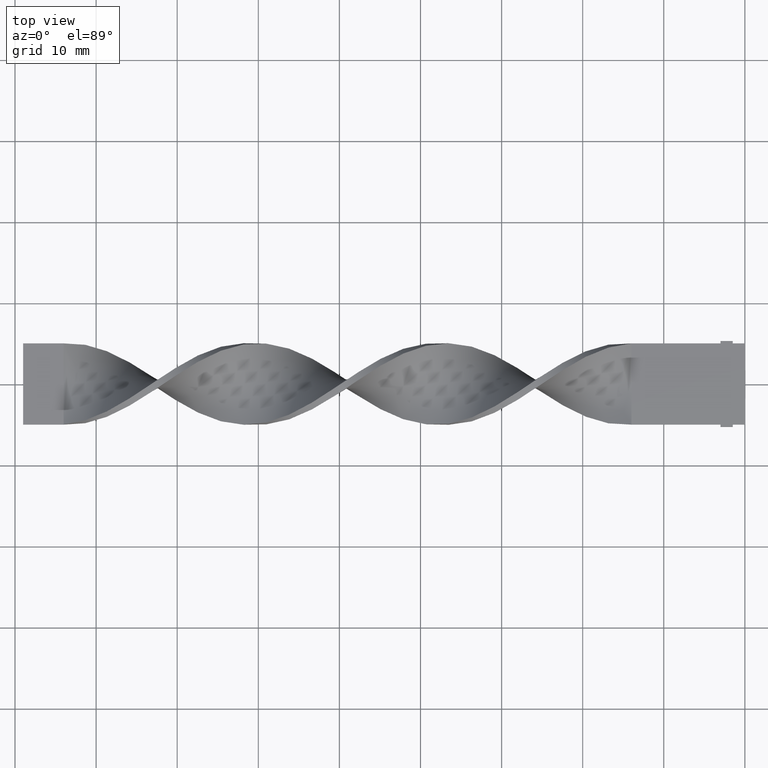
[diagram: clean part render]
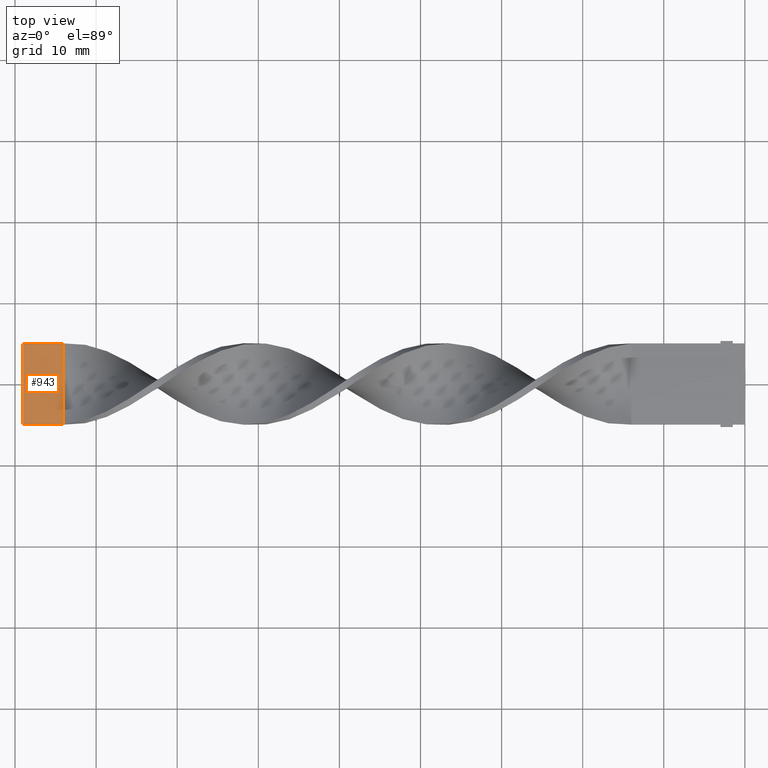
[diagram: same view with one face highlighted and labeled with its STEP entity id]
A machine part, top view. The second image highlights one B-rep face of the part: STEP entity #943.
In plain terms, the highlighted planar face has unit normal (0, -0, -1).
Its self-contained STEP definition (entity closure, byte-faithful):
#37 = DIRECTION ( 'NONE',  ( 0.000000000000000000, 1.000000000000000000, -1.301042606982605567E-16 ) ) ;
#59 = DIRECTION ( 'NONE',  ( 1.000000000000000000, -0.000000000000000000, -0.000000000000000000 ) ) ;
#79 = CARTESIAN_POINT ( 'NONE',  ( -89.00000000000001421, -5.000000000000002665, 0.5000000000000006661 ) ) ;
#136 = DIRECTION ( 'NONE',  ( 0.000000000000000000, -1.301042606982605567E-16, -1.000000000000000000 ) ) ;
#190 = CARTESIAN_POINT ( 'NONE',  ( -84.00000000000000000, 1.666666666666663188, 0.4999999999999997780 ) ) ;
#218 = ORIENTED_EDGE ( 'NONE', *, *, #412, .F. ) ;
#258 = VECTOR ( 'NONE', #37, 1000.000000000000000 ) ;
#319 = VERTEX_POINT ( 'NONE', #540 ) ;
#412 = EDGE_CURVE ( 'NONE', #830, #857, #792, .T. ) ;
#449 = ORIENTED_EDGE ( 'NONE', *, *, #1068, .T. ) ;
#515 = CARTESIAN_POINT ( 'NONE',  ( -89.00000000000001421, 4.999999999999995559, 0.4999999999999993339 ) ) ;
#540 = CARTESIAN_POINT ( 'NONE',  ( -84.00000000000000000, -5.000000000000002665, 0.5000000000000006661 ) ) ;
#636 = EDGE_LOOP ( 'NONE', ( #1565, #218, #723, #449 ) ) ;
#641 = PLANE ( 'NONE',  #922 ) ;
#683 = VECTOR ( 'NONE', #1501, 1000.000000000000000 ) ;
#723 = ORIENTED_EDGE ( 'NONE', *, *, #933, .F. ) ;
#745 = CARTESIAN_POINT ( 'NONE',  ( -89.00000000000001421, -5.000000000000002665, 0.5000000000000006661 ) ) ;
#779 = FACE_OUTER_BOUND ( 'NONE', #636, .T. ) ;
#792 = LINE ( 'NONE', #515, #954 ) ;
#805 = CARTESIAN_POINT ( 'NONE',  ( -84.00000000000000000, 4.999999999999995559, 0.4999999999999993339 ) ) ;
#815 = CARTESIAN_POINT ( 'NONE',  ( -84.00000000000000000, -1.666666666666670071, 0.5000000000000002220 ) ) ;
#830 = VERTEX_POINT ( 'NONE', #1611 ) ;
#857 = VERTEX_POINT ( 'NONE', #1495 ) ;
#901 = CARTESIAN_POINT ( 'NONE',  ( -89.00000000000001421, -5.000000000000002665, 0.5000000000000006661 ) ) ;
#916 = DIRECTION ( 'NONE',  ( 0.000000000000000000, 1.000000000000000000, -1.301042606982605567E-16 ) ) ;
#922 = AXIS2_PLACEMENT_3D ( 'NONE', #1278, #136, #916 ) ;
#933 = EDGE_CURVE ( 'NONE', #1472, #830, #1523, .T. ) ;
#943 = ADVANCED_FACE ( 'NONE', ( #779 ), #641, .F. ) ;
#954 = VECTOR ( 'NONE', #59, 1000.000000000000000 ) ;
#1008 = LINE ( 'NONE', #745, #683 ) ;
#1068 = EDGE_CURVE ( 'NONE', #1472, #319, #1008, .T. ) ;
#1189 = CARTESIAN_POINT ( 'NONE',  ( -84.00000000000000000, -5.000000000000002665, 0.5000000000000006661 ) ) ;
#1227 = B_SPLINE_CURVE_WITH_KNOTS ( 'NONE', 3,
 ( #1189, #815, #190, #805 ),
 .UNSPECIFIED., .F., .F.,
 ( 4, 4 ),
 ( 0.000000000000000000, 1.000000000000000000 ),
 .UNSPECIFIED. ) ;
#1251 = EDGE_CURVE ( 'NONE', #319, #857, #1227, .T. ) ;
#1278 = CARTESIAN_POINT ( 'NONE',  ( -89.00000000000001421, -5.000000000000002665, 0.5000000000000006661 ) ) ;
#1472 = VERTEX_POINT ( 'NONE', #79 ) ;
#1495 = CARTESIAN_POINT ( 'NONE',  ( -84.00000000000000000, 4.999999999999995559, 0.4999999999999993339 ) ) ;
#1501 = DIRECTION ( 'NONE',  ( 1.000000000000000000, -0.000000000000000000, -0.000000000000000000 ) ) ;
#1523 = LINE ( 'NONE', #901, #258 ) ;
#1565 = ORIENTED_EDGE ( 'NONE', *, *, #1251, .T. ) ;
#1611 = CARTESIAN_POINT ( 'NONE',  ( -89.00000000000001421, 4.999999999999995559, 0.4999999999999993339 ) ) ;